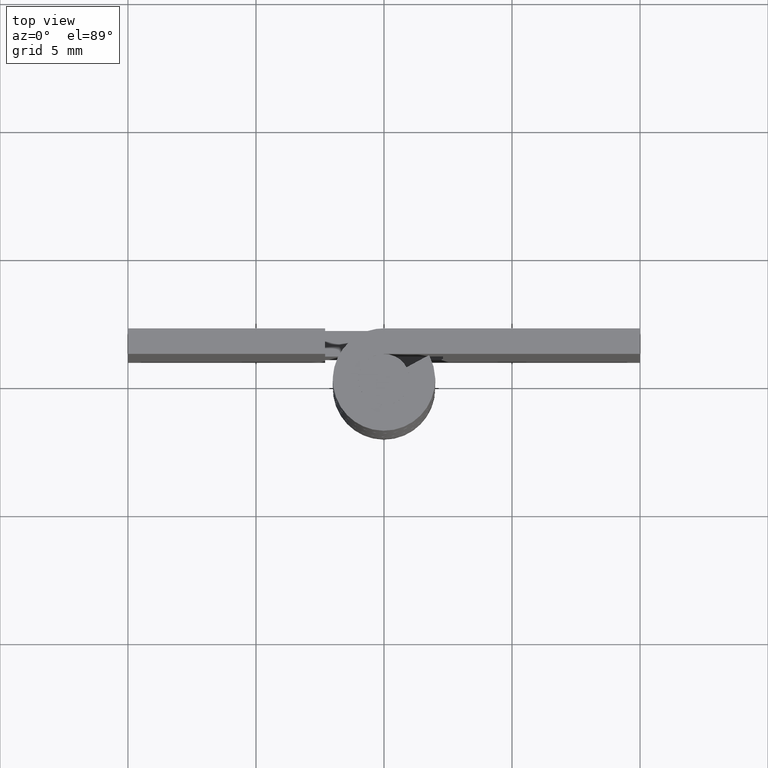
[diagram: clean part render]
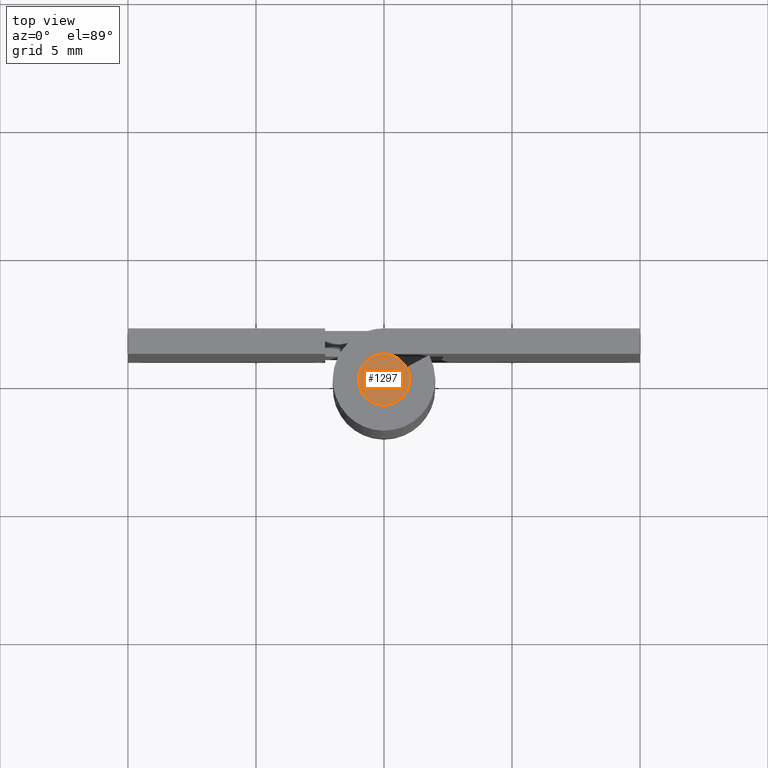
[diagram: same view with one face highlighted and labeled with its STEP entity id]
A machine part, top view. The second image highlights one B-rep face of the part: STEP entity #1297.
In plain terms, the highlighted face is a freeform B-spline surface patch.
Its self-contained STEP definition (entity closure, byte-faithful):
#1129=CARTESIAN_POINT('',(0.118034234664601,-0.993009526362734,20.0));
#1130=VERTEX_POINT('',#1129);
#1136=CARTESIAN_POINT('',(-1.0,0.0,20.0));
#1137=VERTEX_POINT('',#1136);
#1138=CARTESIAN_POINT('',(0.118034234664601,-0.993009526362734,20.0));
#1139=CARTESIAN_POINT('',(0.059224119659835,-1.0,19.999999999999996));
#1140=CARTESIAN_POINT('',(0.0,-1.0,20.0));
#1141=CARTESIAN_POINT('',(-1.0,-1.0,19.999999999999996));
#1142=CARTESIAN_POINT('',(-1.0,0.0,20.0));
#1150=(BOUNDED_CURVE()B_SPLINE_CURVE(2,(#1138,#1139,#1140,#1141,#1142),.UNSPECIFIED.,.F.,.U.)B_SPLINE_CURVE_WITH_KNOTS((3,2,3),(0.229562473512975,0.250000000000000,0.500000000000000),.UNSPECIFIED.)CURVE()GEOMETRIC_REPRESENTATION_ITEM()RATIONAL_B_SPLINE_CURVE((0.956026754182654,0.976055948330520,1.0,0.707106781186548,1.0))REPRESENTATION_ITEM(''));
#1151=EDGE_CURVE('',#1130,#1137,#1150,.T.);
#1153=CARTESIAN_POINT('',(-0.061048539586870,0.998134798418686,20.0));
#1154=VERTEX_POINT('',#1153);
#1155=CARTESIAN_POINT('',(-1.0,0.0,20.0));
#1156=CARTESIAN_POINT('',(-1.0,0.940706066807474,20.000000000000004));
#1157=CARTESIAN_POINT('',(-0.061048539586870,0.998134798418686,20.0));
#1165=(BOUNDED_CURVE()B_SPLINE_CURVE(2,(#1155,#1156,#1157),.UNSPECIFIED.,.F.,.U.)B_SPLINE_CURVE_WITH_KNOTS((3,3),(0.500000000000000,0.739332962223986),.UNSPECIFIED.)CURVE()GEOMETRIC_REPRESENTATION_ITEM()RATIONAL_B_SPLINE_CURVE((1.0,0.719603993304233,0.976072041634662))REPRESENTATION_ITEM(''));
#1166=EDGE_CURVE('',#1137,#1154,#1165,.T.);
#1240=CARTESIAN_POINT('',(1.0,0.0,20.0));
#1241=VERTEX_POINT('',#1240);
#1242=CARTESIAN_POINT('',(-0.061048539586870,0.998134798418686,19.999999999999996));
#1243=CARTESIAN_POINT('',(-0.030552763350748,1.0,20.0));
#1244=CARTESIAN_POINT('',(0.0,1.0,20.0));
#1245=CARTESIAN_POINT('',(1.0,1.0,19.999999999999996));
#1246=CARTESIAN_POINT('',(1.0,0.0,20.0));
#1254=(BOUNDED_CURVE()B_SPLINE_CURVE(2,(#1242,#1243,#1244,#1245,#1246),.UNSPECIFIED.,.F.,.U.)B_SPLINE_CURVE_WITH_KNOTS((3,2,3),(0.739332962223985,0.750000000000000,1.0),.UNSPECIFIED.)CURVE()GEOMETRIC_REPRESENTATION_ITEM()RATIONAL_B_SPLINE_CURVE((0.976072041634661,0.987502787882313,1.0,0.707106781186548,1.0))REPRESENTATION_ITEM(''));
#1255=EDGE_CURVE('',#1154,#1241,#1254,.T.);
#1257=CARTESIAN_POINT('',(1.0,0.0,20.0));
#1258=CARTESIAN_POINT('',(1.0,-0.888174525937240,19.999999999999996));
#1259=CARTESIAN_POINT('',(0.118034234664601,-0.993009526362734,20.0));
#1267=(BOUNDED_CURVE()B_SPLINE_CURVE(2,(#1257,#1258,#1259),.UNSPECIFIED.,.F.,.U.)B_SPLINE_CURVE_WITH_KNOTS((3,3),(0.0,0.229562473512975),.UNSPECIFIED.)CURVE()GEOMETRIC_REPRESENTATION_ITEM()RATIONAL_B_SPLINE_CURVE((1.0,0.731050832856028,0.956026754182654))REPRESENTATION_ITEM(''));
#1268=EDGE_CURVE('',#1241,#1130,#1267,.T.);
#1286=CARTESIAN_POINT('',(-1.099899996123612,-1.099881864535458,20.0));
#1287=CARTESIAN_POINT('',(1.099900049767792,-1.099881864535458,20.0));
#1288=CARTESIAN_POINT('',(-1.099899996123612,1.099875659691937,20.0));
#1289=CARTESIAN_POINT('',(1.099900049767792,1.099875659691938,20.0));
#1290=B_SPLINE_SURFACE_WITH_KNOTS('',1,1,((#1286,#1288),(#1287,#1289)),.UNSPECIFIED.,.F.,.F.,.U.,(2,2),(2,2),(0.0,2.199800045891404),(0.0,2.199757524227396),.UNSPECIFIED.);
#1291=ORIENTED_EDGE('',*,*,#1255,.F.);
#1292=ORIENTED_EDGE('',*,*,#1166,.F.);
#1293=ORIENTED_EDGE('',*,*,#1151,.F.);
#1294=ORIENTED_EDGE('',*,*,#1268,.F.);
#1295=EDGE_LOOP('',(#1291,#1292,#1293,#1294));
#1296=FACE_OUTER_BOUND('',#1295,.T.);
#1297=ADVANCED_FACE('',(#1296),#1290,.T.);